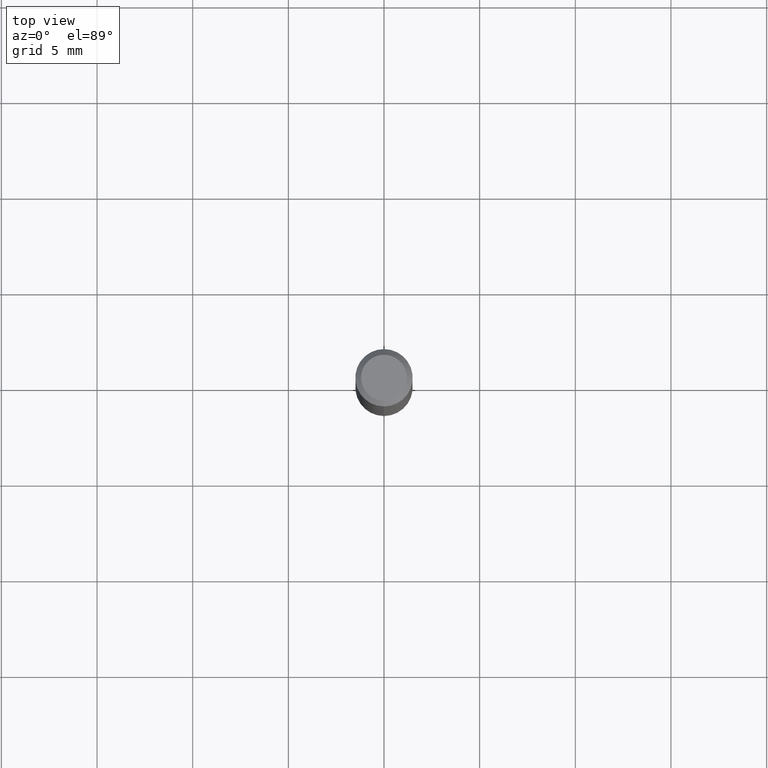
[diagram: clean part render]
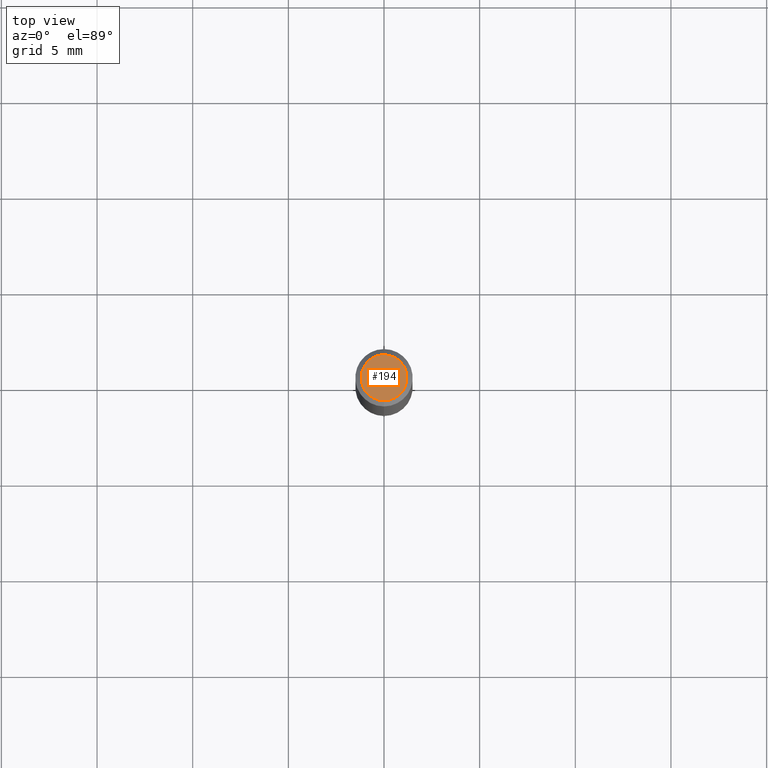
[diagram: same view with one face highlighted and labeled with its STEP entity id]
A machine part, top view. The second image highlights one B-rep face of the part: STEP entity #194.
In plain terms, the highlighted planar face has unit normal (-0, 0, 1).
Its self-contained STEP definition (entity closure, byte-faithful):
#126=EDGE_CURVE('',#146,#190,#304,.T.);
#146=VERTEX_POINT('',#326);
#190=VERTEX_POINT('',#377);
#194=ADVANCED_FACE('',(#381),#382,.T.);
#212=EDGE_CURVE('',#190,#146,#402,.T.);
#304=CIRCLE('',#499,1.2);
#326=CARTESIAN_POINT('',(0.0,1.2,0.0));
#377=CARTESIAN_POINT('',(1.46952762458685E-016,-1.2,0.0));
#381=FACE_OUTER_BOUND('',#602,.T.);
#382=PLANE('',#603);
#402=CIRCLE('',#626,1.2);
#499=AXIS2_PLACEMENT_3D('',#722,#723,#724);
#602=EDGE_LOOP('',(#828,#829));
#603=AXIS2_PLACEMENT_3D('',#830,#831,#832);
#626=AXIS2_PLACEMENT_3D('',#847,#848,#849);
#722=CARTESIAN_POINT('',(0.0,0.0,0.0));
#723=DIRECTION('',(0.0,0.0,-1.0));
#724=DIRECTION('',(0.0,1.0,0.0));
#828=ORIENTED_EDGE('',*,*,#126,.F.);
#829=ORIENTED_EDGE('',*,*,#212,.F.);
#830=CARTESIAN_POINT('',(0.0,0.6,0.0));
#831=DIRECTION('',(-0.0,0.0,1.0));
#832=DIRECTION('',(0.0,-1.0,0.0));
#847=CARTESIAN_POINT('',(0.0,0.0,0.0));
#848=DIRECTION('',(0.0,0.0,-1.0));
#849=DIRECTION('',(0.0,1.0,0.0));